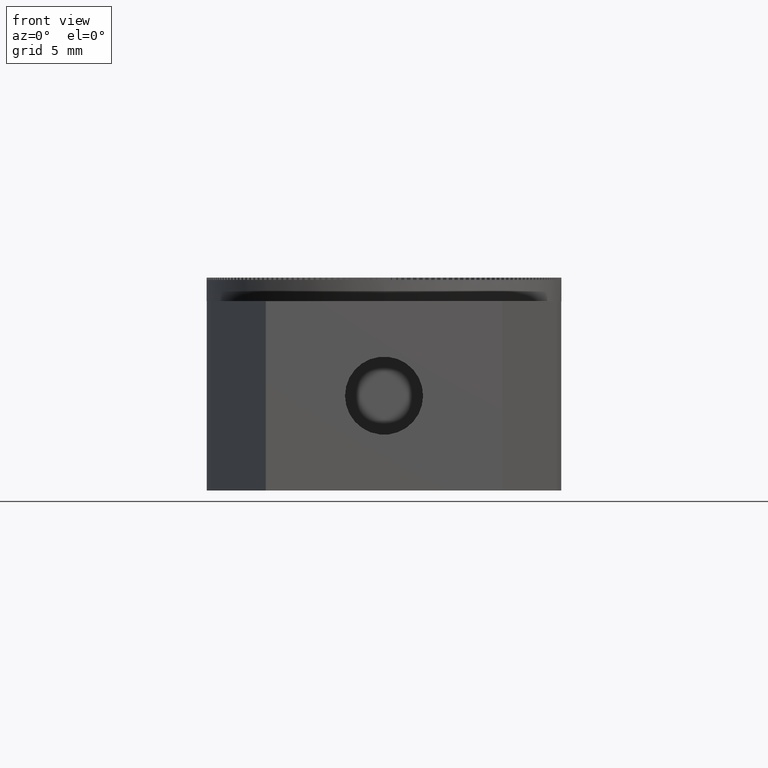
[diagram: clean part render]
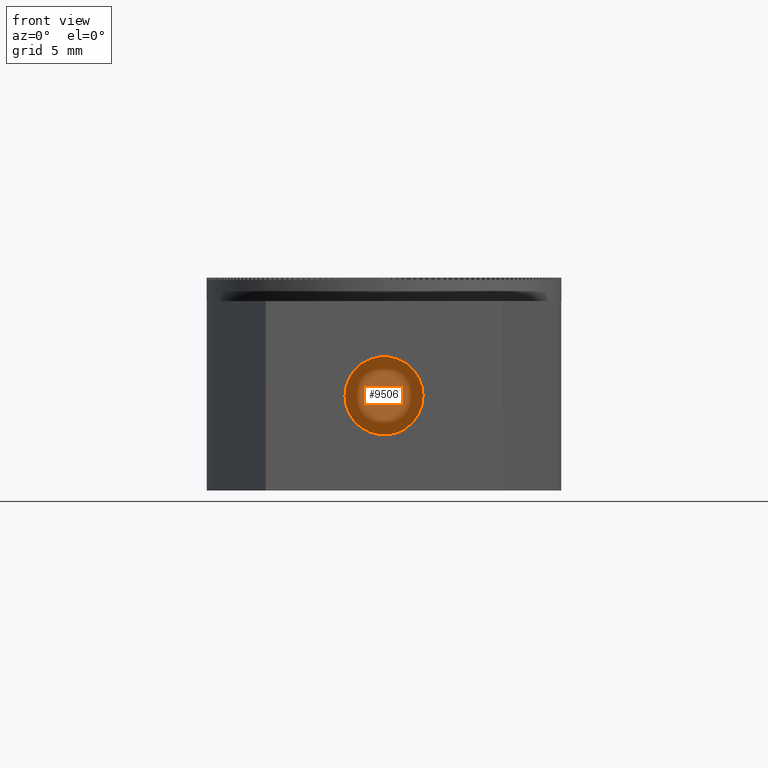
[diagram: same view with one face highlighted and labeled with its STEP entity id]
A machine part, front view. The second image highlights one B-rep face of the part: STEP entity #9506.
In plain terms, the highlighted planar face has unit normal (-0, 1, 0).
Its self-contained STEP definition (entity closure, byte-faithful):
#2924 = VERTEX_POINT ( 'NONE', #10442 ) ;
#3793 = ORIENTED_EDGE ( 'NONE', *, *, #21599, .T. ) ;
#9506 = ADVANCED_FACE ( 'NONE', ( #9538 ), #34245, .F. ) ;
#9538 = FACE_OUTER_BOUND ( 'NONE', #35252, .T. ) ;
#10442 = CARTESIAN_POINT ( 'NONE',  ( 1.649999999999997913, 4.000000000000000000, 6.000000000000000888 ) ) ;
#11363 = DIRECTION ( 'NONE',  ( 1.000000000000000000, 0.000000000000000000, 0.000000000000000000 ) ) ;
#14445 = AXIS2_PLACEMENT_3D ( 'NONE', #43220, #19809, #19159 ) ;
#19159 = DIRECTION ( 'NONE',  ( -1.000000000000000000, 0.000000000000000000, -0.000000000000000000 ) ) ;
#19356 = AXIS2_PLACEMENT_3D ( 'NONE', #31299, #35799, #25552 ) ;
#19809 = DIRECTION ( 'NONE',  ( 0.000000000000000000, 0.000000000000000000, -1.000000000000000000 ) ) ;
#21599 = EDGE_CURVE ( 'NONE', #41143, #2924, #47221, .T. ) ;
#25552 = DIRECTION ( 'NONE',  ( 1.000000000000000000, 0.000000000000000000, 0.000000000000000000 ) ) ;
#31299 = CARTESIAN_POINT ( 'NONE',  ( 8.006416042969812242E-17, 4.000000000000000000, 6.000000000000000888 ) ) ;
#34245 = PLANE ( 'NONE',  #14445 ) ;
#35252 = EDGE_LOOP ( 'NONE', ( #61358, #3793 ) ) ;
#35799 = DIRECTION ( 'NONE',  ( -0.000000000000000000, -0.000000000000000000, 1.000000000000000000 ) ) ;
#35984 = AXIS2_PLACEMENT_3D ( 'NONE', #50182, #54717, #11363 ) ;
#41143 = VERTEX_POINT ( 'NONE', #42077 ) ;
#41843 = EDGE_CURVE ( 'NONE', #2924, #41143, #46988, .T. ) ;
#42077 = CARTESIAN_POINT ( 'NONE',  ( -1.649999999999998135, 4.000000000000000000, 6.000000000000000888 ) ) ;
#43220 = CARTESIAN_POINT ( 'NONE',  ( -1.389511998547125492E-15, 4.000000000000000000, 6.000000000000000888 ) ) ;
#46988 = CIRCLE ( 'NONE', #19356, 1.649999999999997913 ) ;
#47221 = CIRCLE ( 'NONE', #35984, 1.649999999999997913 ) ;
#50182 = CARTESIAN_POINT ( 'NONE',  ( 8.006416042969812242E-17, 4.000000000000000000, 6.000000000000000888 ) ) ;
#54717 = DIRECTION ( 'NONE',  ( -0.000000000000000000, -0.000000000000000000, 1.000000000000000000 ) ) ;
#61358 = ORIENTED_EDGE ( 'NONE', *, *, #41843, .T. ) ;